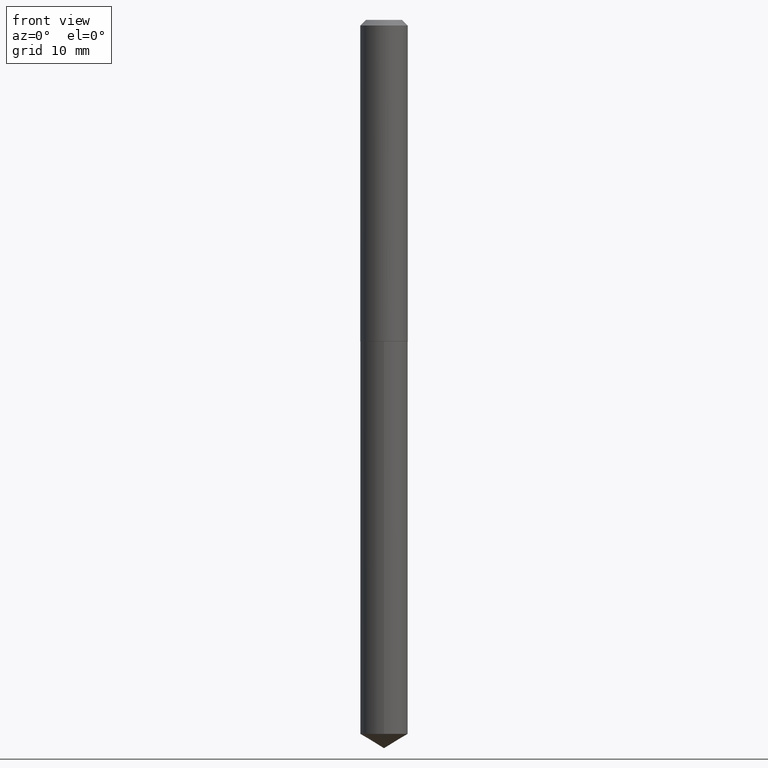
[diagram: clean part render]
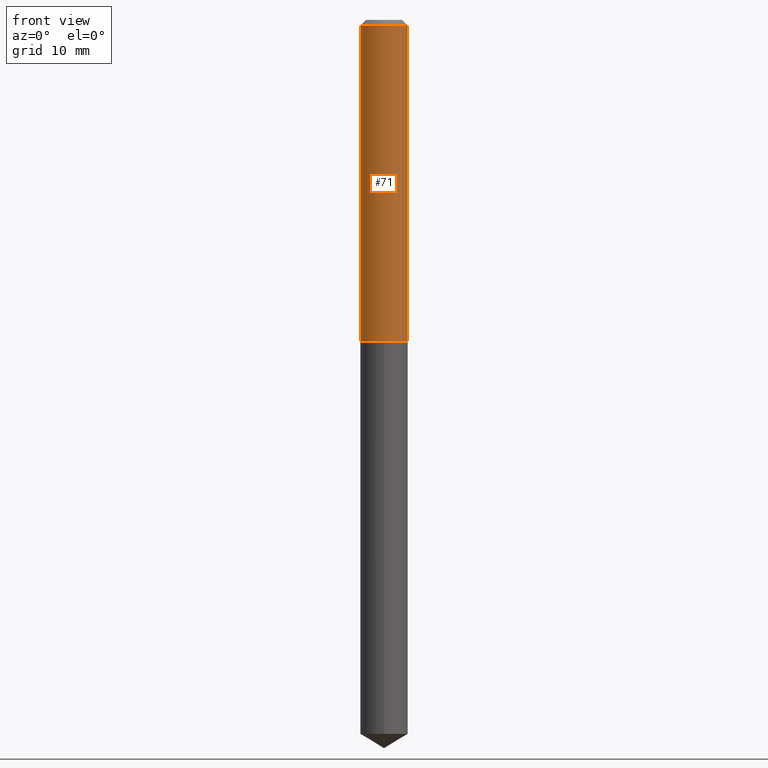
[diagram: same view with one face highlighted and labeled with its STEP entity id]
A machine part, front view. The second image highlights one B-rep face of the part: STEP entity #71.
In plain terms, the highlighted cylindrical surface (edge-blend (fillet) strip) has radius 3.2995 mm, axis along (-0, 0, 1).
Its self-contained STEP definition (entity closure, byte-faithful):
#6 = LINE ( 'NONE', #366, #231 ) ;
#9 = DIRECTION ( 'NONE',  ( -2.445468806185136877E-29, 3.491481338843145188E-15, 1.000000000000000000 ) ) ;
#24 = CYLINDRICAL_SURFACE ( 'NONE', #267, 0.1299000000000000987 ) ;
#49 = ORIENTED_EDGE ( 'NONE', *, *, #60, .F. ) ;
#60 = EDGE_CURVE ( 'NONE', #238, #388, #107, .T. ) ;
#71 = ADVANCED_FACE ( 'NONE', ( #236 ), #24, .T. ) ;
#73 = CARTESIAN_POINT ( 'NONE',  ( 0.1299000000000002097, -7.036033194036703296E-15, -1.755399999999999627 ) ) ;
#75 = CIRCLE ( 'NONE', #121, 0.1299000000000002097 ) ;
#81 = AXIS2_PLACEMENT_3D ( 'NONE', #365, #90, #304 ) ;
#82 = CARTESIAN_POINT ( 'NONE',  ( 0.000000000000000000, 0.000000000000000000, 0.000000000000000000 ) ) ;
#90 = DIRECTION ( 'NONE',  ( -2.445468806185136597E-29, 3.491481338843145583E-15, 1.000000000000000000 ) ) ;
#107 = LINE ( 'NONE', #198, #131 ) ;
#121 = AXIS2_PLACEMENT_3D ( 'NONE', #156, #381, #159 ) ;
#131 = VECTOR ( 'NONE', #293, 39.37007874015748143 ) ;
#154 = CARTESIAN_POINT ( 'NONE',  ( 0.1299000000000000155, -1.016195643670295093E-15, -0.03125000000000022204 ) ) ;
#156 = CARTESIAN_POINT ( 'NONE',  ( 4.292775942377387152E-29, -6.128946342205256121E-15, -1.755399999999999627 ) ) ;
#159 = DIRECTION ( 'NONE',  ( 1.000000000000000000, -6.982962677686264344E-15, 0.000000000000000000 ) ) ;
#171 = ORIENTED_EDGE ( 'NONE', *, *, #254, .F. ) ;
#174 = EDGE_LOOP ( 'NONE', ( #49, #349, #226, #171 ) ) ;
#197 = CIRCLE ( 'NONE', #81, 0.1299000000000000155 ) ;
#198 = CARTESIAN_POINT ( 'NONE',  ( -0.1299000000000000987, 9.229950137523708429E-16, -6.389696682241127415E-30 ) ) ;
#212 = CARTESIAN_POINT ( 'NONE',  ( -0.1299000000000002097, -5.205951328452885081E-15, -1.755399999999999627 ) ) ;
#222 = CARTESIAN_POINT ( 'NONE',  ( -0.1299000000000000155, -2.196032553269681176E-15, -0.03125000000000022204 ) ) ;
#226 = ORIENTED_EDGE ( 'NONE', *, *, #227, .T. ) ;
#227 = EDGE_CURVE ( 'NONE', #271, #322, #6, .T. ) ;
#231 = VECTOR ( 'NONE', #9, 39.37007874015748143 ) ;
#236 = FACE_OUTER_BOUND ( 'NONE', #174, .T. ) ;
#238 = VERTEX_POINT ( 'NONE', #212 ) ;
#254 = EDGE_CURVE ( 'NONE', #388, #322, #197, .T. ) ;
#265 = DIRECTION ( 'NONE',  ( 1.000000000000000000, -6.982962677686265922E-15, 4.876176775795935232E-29 ) ) ;
#267 = AXIS2_PLACEMENT_3D ( 'NONE', #82, #390, #265 ) ;
#271 = VERTEX_POINT ( 'NONE', #73 ) ;
#293 = DIRECTION ( 'NONE',  ( -2.445468806185136877E-29, 3.491481338843145188E-15, 1.000000000000000000 ) ) ;
#304 = DIRECTION ( 'NONE',  ( 1.000000000000000000, -6.982962677686265133E-15, 0.000000000000000000 ) ) ;
#322 = VERTEX_POINT ( 'NONE', #154 ) ;
#349 = ORIENTED_EDGE ( 'NONE', *, *, #373, .T. ) ;
#365 = CARTESIAN_POINT ( 'NONE',  ( 7.642090019328606165E-31, -1.091087918388490760E-16, -0.03125000000000022204 ) ) ;
#366 = CARTESIAN_POINT ( 'NONE',  ( 0.1299000000000000987, -9.070868518314465837E-16, 6.334153631758925034E-30 ) ) ;
#373 = EDGE_CURVE ( 'NONE', #238, #271, #75, .T. ) ;
#381 = DIRECTION ( 'NONE',  ( -2.445468806185136597E-29, 3.491481338843145583E-15, 1.000000000000000000 ) ) ;
#388 = VERTEX_POINT ( 'NONE', #222 ) ;
#390 = DIRECTION ( 'NONE',  ( -2.445468806185136597E-29, 3.491481338843145583E-15, 1.000000000000000000 ) ) ;